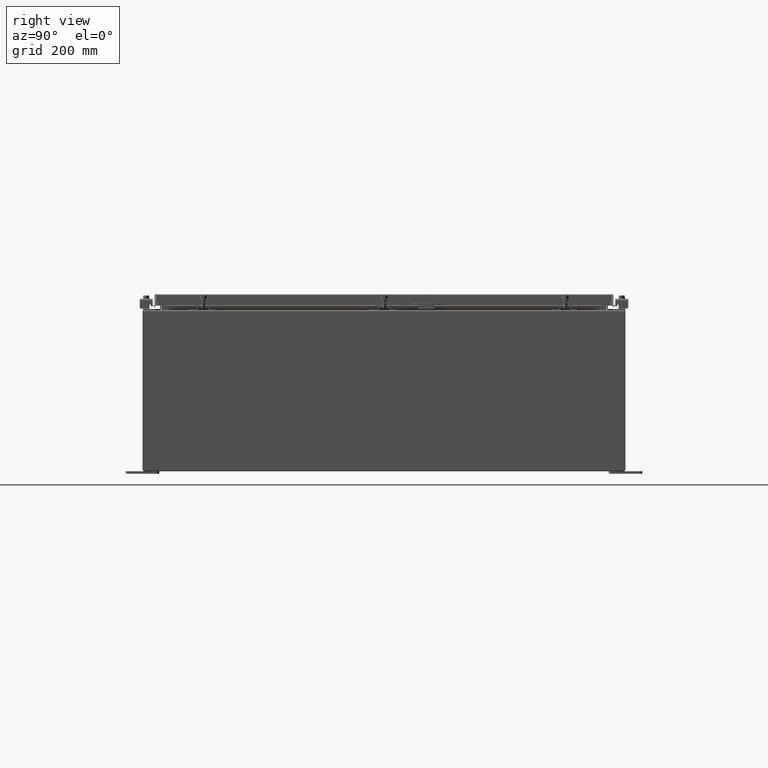
[diagram: clean part render]
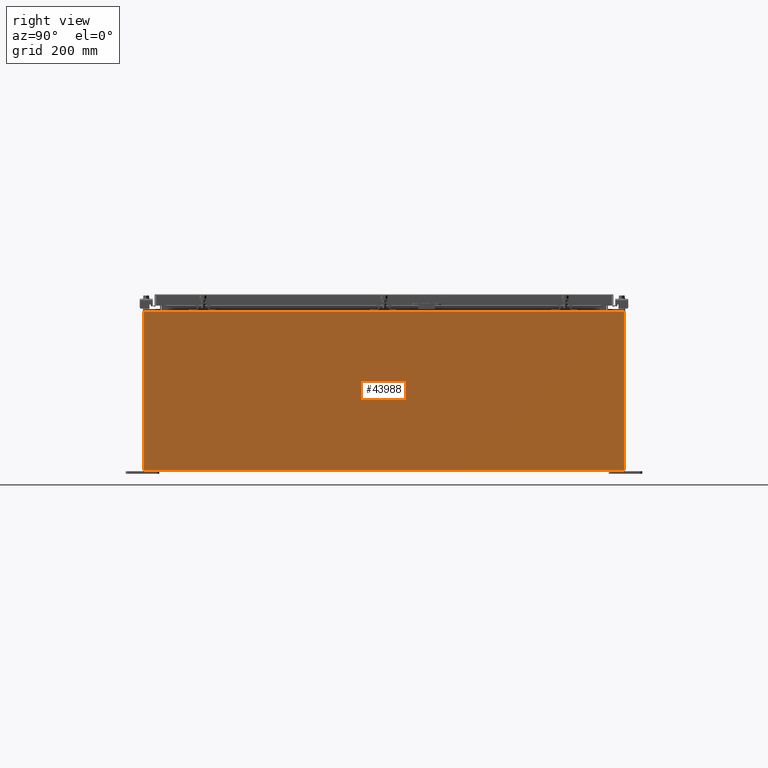
[diagram: same view with one face highlighted and labeled with its STEP entity id]
A machine part, right view. The second image highlights one B-rep face of the part: STEP entity #43988.
In plain terms, the highlighted planar face has unit normal (-1, 0, 0).
Its self-contained STEP definition (entity closure, byte-faithful):
#3953 = CARTESIAN_POINT ( 'NONE',  ( 18.00000000000000000, 17.92530000000000000, 0.01299999999999766100 ) ) ;
#3983 = EDGE_CURVE ( 'NONE', #11905, #23790, #44880, .T. ) ;
#4111 = EDGE_CURVE ( 'NONE', #20681, #23790, #42699, .T. ) ;
#5836 = ORIENTED_EDGE ( 'NONE', *, *, #13657, .T. ) ;
#6741 = ORIENTED_EDGE ( 'NONE', *, *, #4111, .F. ) ;
#8849 = AXIS2_PLACEMENT_3D ( 'NONE', #44659, #10175, #34411 ) ;
#9090 = VECTOR ( 'NONE', #32269, 39.37007874015748100 ) ;
#10175 = DIRECTION ( 'NONE',  ( -1.000000000000000000, 0.0000000000000000000, 3.482016343714355100E-015 ) ) ;
#11905 = VERTEX_POINT ( 'NONE', #24089 ) ;
#13619 = LINE ( 'NONE', #26499, #21818 ) ;
#13657 = EDGE_CURVE ( 'NONE', #20681, #29272, #13619, .T. ) ;
#15698 = EDGE_CURVE ( 'NONE', #29272, #11905, #27640, .T. ) ;
#20681 = VERTEX_POINT ( 'NONE', #3953 ) ;
#21818 = VECTOR ( 'NONE', #26456, 39.37007874015748100 ) ;
#22237 = CARTESIAN_POINT ( 'NONE',  ( 18.00000000000000000, -17.92530000000000000, 0.01299999999999984700 ) ) ;
#22637 = CARTESIAN_POINT ( 'NONE',  ( 18.00000000000000000, -17.92530000000000000, 0.01300000000000022700 ) ) ;
#23033 = DIRECTION ( 'NONE',  ( 2.122662239958547800E-031, -1.000000000000000000, 6.096072018129156600E-017 ) ) ;
#23790 = VERTEX_POINT ( 'NONE', #22637 ) ;
#24089 = CARTESIAN_POINT ( 'NONE',  ( 18.00000000000004300, -17.92530000000000000, 11.83760000000000200 ) ) ;
#24741 = ORIENTED_EDGE ( 'NONE', *, *, #15698, .T. ) ;
#26456 = DIRECTION ( 'NONE',  ( 3.482016343714355500E-015, -1.832640180902292400E-016, 1.000000000000000000 ) ) ;
#26499 = CARTESIAN_POINT ( 'NONE',  ( 18.00000000000000000, 17.92530000000000000, -5.965204533939718800E-014 ) ) ;
#27640 = LINE ( 'NONE', #32166, #9090 ) ;
#28527 = CARTESIAN_POINT ( 'NONE',  ( 18.00000000000004300, 17.92530000000000000, 11.83760000000000200 ) ) ;
#29272 = VERTEX_POINT ( 'NONE', #28527 ) ;
#31445 = VECTOR ( 'NONE', #23033, 39.37007874015748100 ) ;
#32166 = CARTESIAN_POINT ( 'NONE',  ( 18.00000000000004300, 17.92530000000000000, 11.83760000000000200 ) ) ;
#32269 = DIRECTION ( 'NONE',  ( -0.0000000000000000000, -1.000000000000000000, -0.0000000000000000000 ) ) ;
#33840 = EDGE_LOOP ( 'NONE', ( #24741, #39777, #6741, #5836 ) ) ;
#34108 = DIRECTION ( 'NONE',  ( -3.482016343714355500E-015, 0.0000000000000000000, -1.000000000000000000 ) ) ;
#34411 = DIRECTION ( 'NONE',  ( 3.482016343714355100E-015, 0.0000000000000000000, 1.000000000000000000 ) ) ;
#35685 = VECTOR ( 'NONE', #34108, 39.37007874015748100 ) ;
#37917 = CARTESIAN_POINT ( 'NONE',  ( 18.00000000000000000, -17.92530000000000000, -6.293710784286997500E-014 ) ) ;
#39777 = ORIENTED_EDGE ( 'NONE', *, *, #3983, .T. ) ;
#41173 = PLANE ( 'NONE',  #8849 ) ;
#42699 = LINE ( 'NONE', #22237, #31445 ) ;
#43750 = FACE_OUTER_BOUND ( 'NONE', #33840, .T. ) ;
#43988 = ADVANCED_FACE ( 'NONE', ( #43750 ), #41173, .F. ) ;
#44659 = CARTESIAN_POINT ( 'NONE',  ( 18.00000000000000000, 0.0000000000000000000, -6.293710784286997500E-014 ) ) ;
#44880 = LINE ( 'NONE', #37917, #35685 ) ;